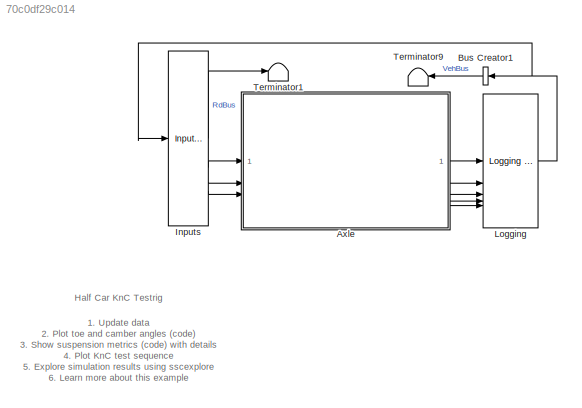
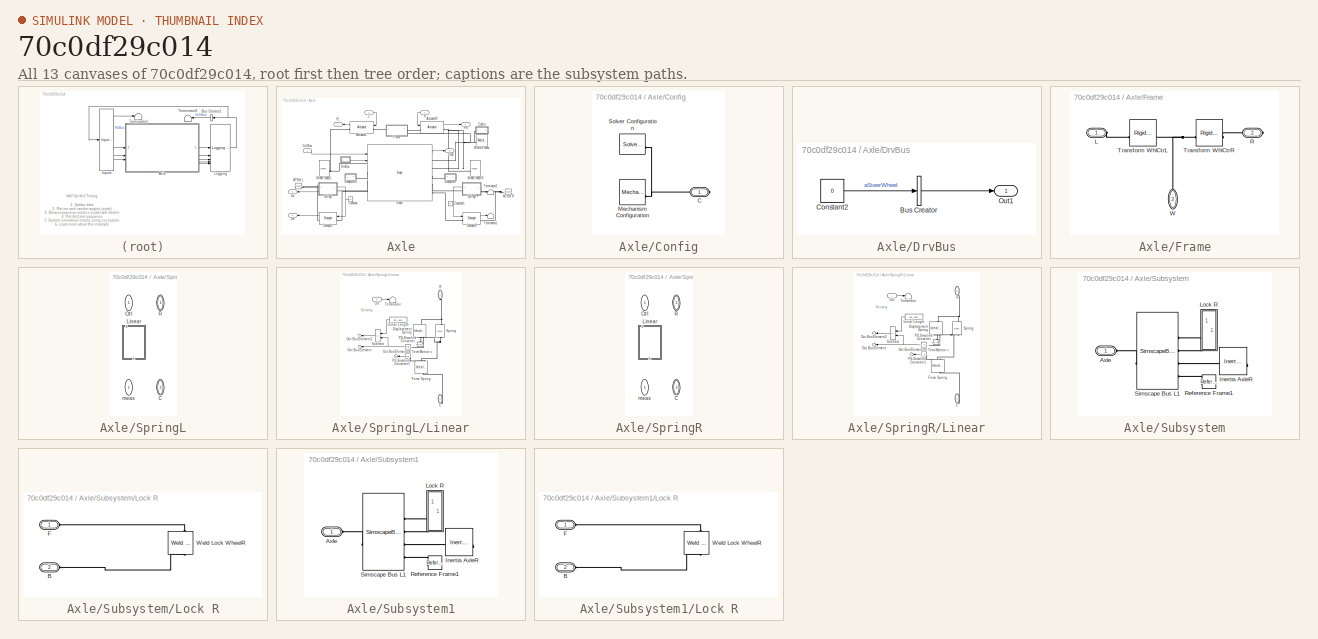
[diagram: thumbnail index - all 13 canvases of the model, root first then tree order]
MODEL slx_70c0df29c014
KIND model
CONFIG AbsTol = 1e-3
CONFIG EnableMultiTasking = on
CONFIG FixedStep = auto
CONFIG MaxStep = 0.1
CONFIG MinStep = auto
CONFIG PostLoadFcn = Maneuver = MDatabase.KnC.FSAE_Achilles;\nVisual = sm_car_param_visual('default');
CONFIG RelTol = 1e-3
CONFIG SampleTimeConstraint = Unconstrained
CONFIG SolverName = ode23t
CONFIG StartTime = 0.0
CONFIG StopTime = 309
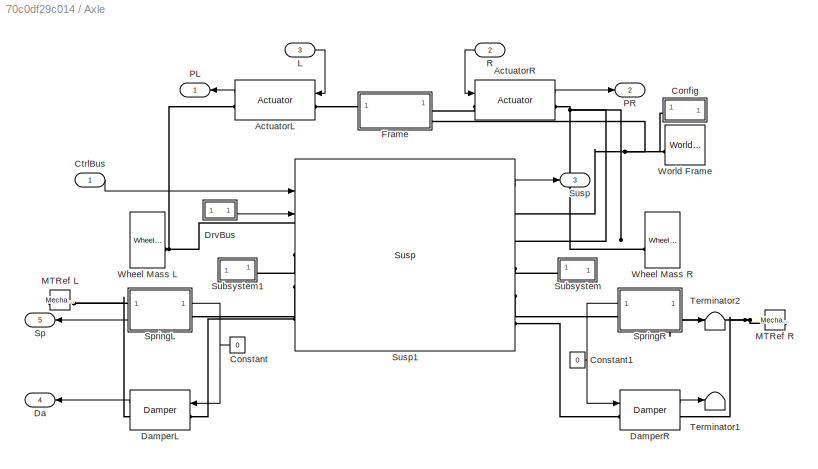
BLOCK [SubSystem] Axle
BLOCK [Outport] Axle/ Da
  Port = 4
BLOCK [Outport] Axle/ Sp
  Port = 5
BLOCK [Reference] Axle/ActuatorL  REF=sm_car_testrig_utilities_lib/Actuator  (lib defined in slx_fb23fd4a23dd)
  SourceBlock = sm_car_testrig_utilities_lib/Actuator
  SourceType = KnC Actuator
BLOCK [Reference] Axle/ActuatorR  REF=sm_car_testrig_utilities_lib/Actuator  (lib defined in slx_fb23fd4a23dd)
  SourceBlock = sm_car_testrig_utilities_lib/Actuator
  SourceType = KnC Actuator
BLOCK [SubSystem] Axle/Config
  NameLocation = right
BLOCK [PMIOPort] Axle/Config/C
  Side = Right
BLOCK [Reference] Axle/Config/Mechanism Configuration  REF=sm_lib/Utilities/Mechanism
Configuration
  SourceBlock = sm_lib/Utilities/Mechanism\nConfiguration
  SourceType = Mechanism\nConfiguration
BLOCK [Reference] Axle/Config/Solver Configuration  REF=nesl_utility/Solver
Configuration
  SourceBlock = nesl_utility/Solver\nConfiguration
  SourceType = Solver\nConfiguration
BLOCK [Constant] Axle/Constant
  Value = 0
BLOCK [Constant] Axle/Constant1
  Value = 0
BLOCK [Inport] Axle/CtrlBus 
BLOCK [Reference] Axle/DamperL  REF=Damper_Element/Damper
  AttributesFormatString = %<ActiveVariant>
  SourceBlock = Damper_Element/Damper
  SourceType = Variants for Damper
BLOCK [Reference] Axle/DamperR  REF=Damper_Element/Damper
  AttributesFormatString = %<ActiveVariant>
  SourceBlock = Damper_Element/Damper
  SourceType = Variants for Damper
BLOCK [SubSystem] Axle/DrvBus
BLOCK [BusCreator] Axle/DrvBus/Bus Creator
  DisplayOption = bar
  InheritFromInputs = on
  Inputs = 1
BLOCK [Constant] Axle/DrvBus/Constant2
  Value = 0
BLOCK [Outport] Axle/DrvBus/Out1
BLOCK [SubSystem] Axle/Frame
  NameLocation = top
  PortSchema = {"entries":[{"content":{"sides":[{"content":{"connectorIds":["LConn1"]},"type":"ConnectorPlacement.EquallySpacedRectSide","uuid":"6bafd3c1-bcc7-4e93-aea7-1b45691869cb"},{"content":{"connectorIds":["RConn1"],"side":"RIGHT"},"type":"ConnectorPlacement.EquallySpacedRectSide","uuid":"8302b8de-ad89-4cb7-8500-2e46ba409587"},{"content":{"connectorIds":[],"side":"TOP"},"type":"ConnectorPlacement.EquallySp...<+397ch>
BLOCK [PMIOPort] Axle/Frame/L
  Side = Left
BLOCK [PMIOPort] Axle/Frame/R
  Port = 2
  Side = Right
BLOCK [Reference] Axle/Frame/Transform WhlCtrL  REF=sm_lib/Frames and
Transforms/Rigid
Transform
  SourceBlock = sm_lib/Frames and\nTransforms/Rigid\nTransform
  SourceType = Rigid\nTransform
BLOCK [Reference] Axle/Frame/Transform WhlCtrR  REF=sm_lib/Frames and
Transforms/Rigid
Transform
  SourceBlock = sm_lib/Frames and\nTransforms/Rigid\nTransform
  SourceType = Rigid\nTransform
BLOCK [PMIOPort] Axle/Frame/W
  NameLocation = right
  Port = 3
  Side = Right
BLOCK [Inport] Axle/L
  Port = 3
BLOCK [Reference] Axle/MTRef L  REF=fl_lib/Mechanical/Translational
Elements/Mechanical
Translational
Reference
  NameLocation = top
  SourceBlock = fl_lib/Mechanical/Translational\nElements/Mechanical\nTranslational\nReference
  SourceType = Mechanical\nTranslational\nReference
BLOCK [Reference] Axle/MTRef R  REF=fl_lib/Mechanical/Translational
Elements/Mechanical
Translational
Reference
  NameLocation = top
  SourceBlock = fl_lib/Mechanical/Translational\nElements/Mechanical\nTranslational\nReference
  SourceType = Mechanical\nTranslational\nReference
BLOCK [Outport] Axle/PL
  NameLocation = top
BLOCK [Outport] Axle/PR
  NameLocation = top
  Port = 2
BLOCK [Inport] Axle/R
  Port = 2
BLOCK [SubSystem] Axle/SpringL
  AttributesFormatString = %<ActiveVariant>
  LabelModeActiveChoice = Linear
  Variant = on
  VariantControl = Variant1
  VariantControlMode = label
BLOCK [PMIOPort] Axle/SpringL/ C
  NameLocation = left
  Port = 2
  Side = Right
BLOCK [PMIOPort] Axle/SpringL/ R
  NameLocation = left
  Side = Left
BLOCK [Outport] Axle/SpringL/ meas
  NameLocation = left
  VectorParamsAs1DForOutWhenUnconnected = off
BLOCK [Inport] Axle/SpringL/Ctrl 
  NameLocation = left
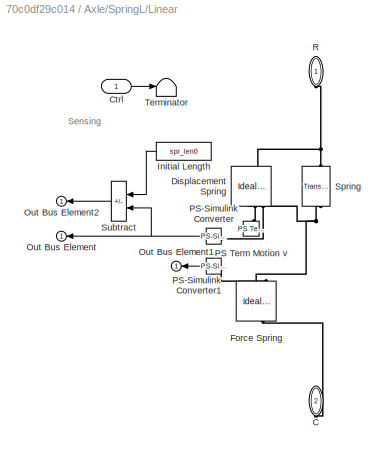
BLOCK [SubSystem] Axle/SpringL/Linear
  NameLocation = right
  VariantControl = Linear
BLOCK [PMIOPort] Axle/SpringL/Linear/C
  NameLocation = right
  Port = 2
  Side = Right
BLOCK [Inport] Axle/SpringL/Linear/Ctrl
BLOCK [Reference] Axle/SpringL/Linear/Displacement Spring  REF=fl_lib/Mechanical/Mechanical Sensors/Ideal Translational
Motion Sensor
  NameLocation = left
  SourceBlock = fl_lib/Mechanical/Mechanical Sensors/Ideal Translational\nMotion Sensor
  SourceType = Ideal Translational\nMotion Sensor
BLOCK [Reference] Axle/SpringL/Linear/Force Spring  REF=fl_lib/Mechanical/Mechanical Sensors/Ideal Force Sensor
  NameLocation = left
  SourceBlock = fl_lib/Mechanical/Mechanical Sensors/Ideal Force Sensor
  SourceType = Ideal Force Sensor
BLOCK [Constant] Axle/SpringL/Linear/Initial Length
  NameLocation = top
  Value = spr_len0
BLOCK [Outport] Axle/SpringL/Linear/Out Bus Element
  NameLocation = top
  VectorParamsAs1DForOutWhenUnconnected = off
BLOCK [Outport] Axle/SpringL/Linear/Out Bus Element1
  NameLocation = top
  VectorParamsAs1DForOutWhenUnconnected = off
BLOCK [Outport] Axle/SpringL/Linear/Out Bus Element2
  NameLocation = top
  VectorParamsAs1DForOutWhenUnconnected = off
BLOCK [Reference] Axle/SpringL/Linear/PS Term Motion v  REF=fl_lib/Physical Signals/Sinks/PS Terminator
  NameLocation = right
  SourceBlock = fl_lib/Physical Signals/Sinks/PS Terminator
  SourceType = PS Terminator
BLOCK [Reference] Axle/SpringL/Linear/PS-Simulink Converter  REF=nesl_utility/PS-Simulink
Converter
  NameLocation = top
  SourceBlock = nesl_utility/PS-Simulink\nConverter
  SourceType = PS-Simulink\nConverter
BLOCK [Reference] Axle/SpringL/Linear/PS-Simulink Converter1  REF=nesl_utility/PS-Simulink
Converter
  NameLocation = top
  SourceBlock = nesl_utility/PS-Simulink\nConverter
  SourceType = PS-Simulink\nConverter
BLOCK [PMIOPort] Axle/SpringL/Linear/R
  NameLocation = right
  Side = Left
BLOCK [Reference] Axle/SpringL/Linear/Spring  REF=fl_lib/Mechanical/Translational
Elements/Translational Spring
  NameLocation = right
  SourceBlock = fl_lib/Mechanical/Translational\nElements/Translational Spring
  SourceType = Translational Spring
BLOCK [Sum] Axle/SpringL/Linear/Subtract
  IconShape = rectangular
  Inputs = -+
BLOCK [Terminator] Axle/SpringL/Linear/Terminator
BLOCK [SubSystem] Axle/SpringR
  AttributesFormatString = %<ActiveVariant>
  LabelModeActiveChoice = Linear
  Variant = on
  VariantControl = Variant1
  VariantControlMode = label
BLOCK [PMIOPort] Axle/SpringR/ C
  NameLocation = left
  Port = 2
  Side = Right
BLOCK [PMIOPort] Axle/SpringR/ R
  NameLocation = left
  Side = Left
BLOCK [Outport] Axle/SpringR/ meas
  NameLocation = left
  VectorParamsAs1DForOutWhenUnconnected = off
BLOCK [Inport] Axle/SpringR/Ctrl 
  NameLocation = left
BLOCK [SubSystem] Axle/SpringR/Linear
  NameLocation = right
  VariantControl = Linear
BLOCK [PMIOPort] Axle/SpringR/Linear/C
  NameLocation = right
  Port = 2
  Side = Right
BLOCK [Inport] Axle/SpringR/Linear/Ctrl
BLOCK [Reference] Axle/SpringR/Linear/Displacement Spring  REF=fl_lib/Mechanical/Mechanical Sensors/Ideal Translational
Motion Sensor
  NameLocation = left
  SourceBlock = fl_lib/Mechanical/Mechanical Sensors/Ideal Translational\nMotion Sensor
  SourceType = Ideal Translational\nMotion Sensor
BLOCK [Reference] Axle/SpringR/Linear/Force Spring  REF=fl_lib/Mechanical/Mechanical Sensors/Ideal Force Sensor
  NameLocation = left
  SourceBlock = fl_lib/Mechanical/Mechanical Sensors/Ideal Force Sensor
  SourceType = Ideal Force Sensor
BLOCK [Constant] Axle/SpringR/Linear/Initial Length
  NameLocation = top
  Value = spr_len0
BLOCK [Outport] Axle/SpringR/Linear/Out Bus Element
  NameLocation = top
  VectorParamsAs1DForOutWhenUnconnected = off
BLOCK [Outport] Axle/SpringR/Linear/Out Bus Element1
  NameLocation = top
  VectorParamsAs1DForOutWhenUnconnected = off
BLOCK [Outport] Axle/SpringR/Linear/Out Bus Element2
  NameLocation = top
  VectorParamsAs1DForOutWhenUnconnected = off
BLOCK [Reference] Axle/SpringR/Linear/PS Term Motion v  REF=fl_lib/Physical Signals/Sinks/PS Terminator
  NameLocation = right
  SourceBlock = fl_lib/Physical Signals/Sinks/PS Terminator
  SourceType = PS Terminator
BLOCK [Reference] Axle/SpringR/Linear/PS-Simulink Converter  REF=nesl_utility/PS-Simulink
Converter
  NameLocation = top
  SourceBlock = nesl_utility/PS-Simulink\nConverter
  SourceType = PS-Simulink\nConverter
BLOCK [Reference] Axle/SpringR/Linear/PS-Simulink Converter1  REF=nesl_utility/PS-Simulink
Converter
  NameLocation = top
  SourceBlock = nesl_utility/PS-Simulink\nConverter
  SourceType = PS-Simulink\nConverter
BLOCK [PMIOPort] Axle/SpringR/Linear/R
  NameLocation = right
  Side = Left
BLOCK [Reference] Axle/SpringR/Linear/Spring  REF=fl_lib/Mechanical/Translational
Elements/Translational Spring
  NameLocation = right
  SourceBlock = fl_lib/Mechanical/Translational\nElements/Translational Spring
  SourceType = Translational Spring
BLOCK [Sum] Axle/SpringR/Linear/Subtract
  IconShape = rectangular
  Inputs = -+
BLOCK [Terminator] Axle/SpringR/Linear/Terminator
BLOCK [SubSystem] Axle/Subsystem
BLOCK [PMIOPort] Axle/Subsystem/Axle
  Side = Left
BLOCK [Reference] Axle/Subsystem/Inertia AxleR  REF=fl_lib/Mechanical/Rotational Elements/Inertia
  NameLocation = top
  SourceBlock = fl_lib/Mechanical/Rotational Elements/Inertia
  SourceType = Inertia
BLOCK [SubSystem] Axle/Subsystem/Lock R
  NameLocation = right
BLOCK [PMIOPort] Axle/Subsystem/Lock R/B
  Port = 2
  Side = Left
BLOCK [PMIOPort] Axle/Subsystem/Lock R/F
  Side = Left
BLOCK [Reference] Axle/Subsystem/Lock R/Weld Lock WheelR  REF=sm_lib/Joints/Weld Joint
  NameLocation = right
  SourceBlock = sm_lib/Joints/Weld Joint
  SourceType = Weld Joint
BLOCK [Reference] Axle/Subsystem/Reference Frame1  REF=sm_lib/Frames and
Transforms/Reference
Frame
  SourceBlock = sm_lib/Frames and\nTransforms/Reference\nFrame
  SourceType = Reference\nFrame
BLOCK [SimscapeBus] Axle/Subsystem/Simscape Bus L1
  HierarchyStrings = RaceSpin;RaceFix;Axle1D;AxleIn
BLOCK [SubSystem] Axle/Subsystem1
BLOCK [PMIOPort] Axle/Subsystem1/Axle
  Side = Left
BLOCK [Reference] Axle/Subsystem1/Inertia AxleR  REF=fl_lib/Mechanical/Rotational Elements/Inertia
  NameLocation = top
  SourceBlock = fl_lib/Mechanical/Rotational Elements/Inertia
  SourceType = Inertia
BLOCK [SubSystem] Axle/Subsystem1/Lock R
  NameLocation = right
BLOCK [PMIOPort] Axle/Subsystem1/Lock R/B
  Port = 2
  Side = Left
BLOCK [PMIOPort] Axle/Subsystem1/Lock R/F
  Side = Left
BLOCK [Reference] Axle/Subsystem1/Lock R/Weld Lock WheelR  REF=sm_lib/Joints/Weld Joint
  NameLocation = right
  SourceBlock = sm_lib/Joints/Weld Joint
  SourceType = Weld Joint
BLOCK [Reference] Axle/Subsystem1/Reference Frame1  REF=sm_lib/Frames and
Transforms/Reference
Frame
  SourceBlock = sm_lib/Frames and\nTransforms/Reference\nFrame
  SourceType = Reference\nFrame
BLOCK [SimscapeBus] Axle/Subsystem1/Simscape Bus L1
  HierarchyStrings = RaceSpin;RaceFix;Axle1D;AxleIn
BLOCK [Outport] Axle/Susp
  Port = 3
BLOCK [Reference] Axle/Susp1  REF=Linkage/Susp
  AttributesFormatString = %<LabelModeActiveChoice>
  SourceBlock = Linkage/Susp
  SourceType = Suspension and Steering
BLOCK [Terminator] Axle/Terminator1
BLOCK [Terminator] Axle/Terminator2
BLOCK [Reference] Axle/Wheel Mass L  REF=sm_car_testrig_utilities_lib/Wheel Mass  (lib defined in slx_fb23fd4a23dd)
  NameLocation = left
  SourceBlock = sm_car_testrig_utilities_lib/Wheel Mass
BLOCK [Reference] Axle/Wheel Mass R  REF=sm_car_testrig_utilities_lib/Wheel Mass  (lib defined in slx_fb23fd4a23dd)
  NameLocation = right
  SourceBlock = sm_car_testrig_utilities_lib/Wheel Mass
BLOCK [Reference] Axle/World Frame  REF=sm_lib/Frames and
Transforms/World Frame
  SourceBlock = sm_lib/Frames and\nTransforms/World Frame
  SourceType = World Frame
BLOCK [BusCreator] Bus Creator1
  DisplayOption = bar
  InheritFromInputs = on
  Inputs = 1
BLOCK [Reference] Inputs  REF=sm_car_testrig_utilities_lib/Inputs Half Car  (lib defined in slx_fb23fd4a23dd)
  SourceBlock = sm_car_testrig_utilities_lib/Inputs Half Car
BLOCK [Reference] Logging  REF=sm_car_testrig_utilities_lib/Logging Half Car  (lib defined in slx_fb23fd4a23dd)
  SourceBlock = sm_car_testrig_utilities_lib/Logging Half Car
  SourceType = Logging Structure
BLOCK [Terminator] Terminator1
  NameLocation = top
BLOCK [Terminator] Terminator9
ANNOTATION (root): 1. Update data 2. Plot toe and camber angles ( code ) 3. Show suspension metrics ( code ) with details 4. Plot KnC test sequence 5. Explore simulation results using sscexplore 6. Learn more about this example
ANNOTATION (root): Half Car KnC Testrig
ANNOTATION Axle/SpringL/Linear: Sensing
ANNOTATION Axle/SpringR/Linear: Sensing
LINE Axle/ActuatorL:1 -> Axle/PL:1
LINE Axle/ActuatorR:1 -> Axle/PR:1
NET Axle/Constant1:1 -> Axle/DamperR:1, Axle/SpringR:1
NET Axle/Constant:1 -> Axle/DamperL:1, Axle/SpringL:1
LINE Axle/CtrlBus :1 -> Axle/Susp1:1
LINE Axle/DamperL:1 -> Axle/ Da:1
LINE Axle/DamperR:1 -> Axle/Terminator1:1
LINE Axle/DrvBus/Bus Creator:1 -> Axle/DrvBus/Out1:1
LINE Axle/DrvBus/Constant2:1 -> Axle/DrvBus/Bus Creator:1
LINE Axle/DrvBus:1 -> Axle/Susp1:2
LINE Axle/L:1 -> Axle/ActuatorL:1
LINE Axle/R:1 -> Axle/ActuatorR:1
LINE Axle/SpringL:1 -> Axle/ Sp:1
LINE Axle/SpringR:1 -> Axle/Terminator2:1
LINE Axle/Susp1:1 -> Axle/Susp:1
LINE Axle:1 -> Logging:1
LINE Axle:2 -> Logging:2
LINE Axle:3 -> Logging:3
LINE Axle:4 -> Logging:4
LINE Axle:5 -> Logging:5
LINE Bus Creator1:1 -> Terminator9:1
LINE Inputs:1 -> Terminator1:1
LINE Inputs:2 -> Axle:1
LINE Inputs:3 -> Axle:2
LINE Inputs:4 -> Axle:3
NET Logging:1 -> Bus Creator1:1, Inputs:1
PLINE Axle/ActuatorL:LConn1 -- Axle/Frame:LConn1
PNET net1: Axle/ActuatorL:RConn1 -- Axle/Susp1:LConn1 -- Axle/Wheel Mass L:RConn1
PLINE Axle/ActuatorR:LConn1 -- Axle/Frame:RConn1
PNET net2: Axle/ActuatorR:RConn1 -- Axle/Susp1:RConn2 -- Axle/Wheel Mass R:RConn1
PNET net3: Axle/Config/C:RConn1 -- Axle/Config/Mechanism Configuration:RConn1 -- Axle/Config/Solver Configuration:RConn1
PNET net4: Axle/Config:RConn1 -- Axle/Frame:RConn2 -- Axle/Susp1:RConn1 -- Axle/World Frame:RConn1
PLINE Axle/DamperL:LConn1 -- Axle/Susp1:LConn4
PNET net5: Axle/DamperL:RConn1 -- Axle/MTRef L:LConn1 -- Axle/SpringL:RConn1
PLINE Axle/DamperR:LConn1 -- Axle/Susp1:RConn5
PNET net6: Axle/DamperR:RConn1 -- Axle/MTRef R:LConn1 -- Axle/SpringR:RConn1
PLINE Axle/Frame/L:RConn1 -- Axle/Frame/Transform WhlCtrL:RConn1
PLINE Axle/Frame/R:RConn1 -- Axle/Frame/Transform WhlCtrR:RConn1
PNET net7: Axle/Frame/Transform WhlCtrL:LConn1 -- Axle/Frame/Transform WhlCtrR:LConn1 -- Axle/Frame/W:RConn1
PLINE Axle/SpringL:LConn1 -- Axle/Susp1:LConn3
PLINE Axle/SpringR:LConn1 -- Axle/Susp1:RConn4
PLINE Axle/Subsystem/Axle:RConn1 -- Axle/Subsystem/Simscape Bus L1:RConn1
PLINE Axle/Subsystem/Inertia AxleR:LConn1 -- Axle/Subsystem/Simscape Bus L1:LConn3
PLINE Axle/Subsystem/Lock R/B:RConn1 -- Axle/Subsystem/Lock R/Weld Lock WheelR:LConn1
PLINE Axle/Subsystem/Lock R/F:RConn1 -- Axle/Subsystem/Lock R/Weld Lock WheelR:RConn1
PLINE Axle/Subsystem/Lock R:LConn1 -- Axle/Subsystem/Simscape Bus L1:LConn1
PLINE Axle/Subsystem/Lock R:LConn2 -- Axle/Subsystem/Simscape Bus L1:LConn2
PLINE Axle/Subsystem/Reference Frame1:RConn1 -- Axle/Subsystem/Simscape Bus L1:LConn4
PLINE Axle/Subsystem1/Axle:RConn1 -- Axle/Subsystem1/Simscape Bus L1:RConn1
PLINE Axle/Subsystem1/Inertia AxleR:LConn1 -- Axle/Subsystem1/Simscape Bus L1:LConn3
PLINE Axle/Subsystem1/Lock R/B:RConn1 -- Axle/Subsystem1/Lock R/Weld Lock WheelR:LConn1
PLINE Axle/Subsystem1/Lock R/F:RConn1 -- Axle/Subsystem1/Lock R/Weld Lock WheelR:RConn1
PLINE Axle/Subsystem1/Lock R:LConn1 -- Axle/Subsystem1/Simscape Bus L1:LConn1
PLINE Axle/Subsystem1/Lock R:LConn2 -- Axle/Subsystem1/Simscape Bus L1:LConn2
PLINE Axle/Subsystem1/Reference Frame1:RConn1 -- Axle/Subsystem1/Simscape Bus L1:LConn4
PLINE Axle/Subsystem1:LConn1 -- Axle/Susp1:LConn2
PLINE Axle/Subsystem:LConn1 -- Axle/Susp1:RConn3
note: NET lines group one-source signal fan-out (src -> all destinations, sorted); 1:1 wires keep LINE; PNET lines group multi-terminal physical nets as a canonical sorted terminal list (undirected conserving connections); 2-terminal nets keep the pairwise PLINE form
